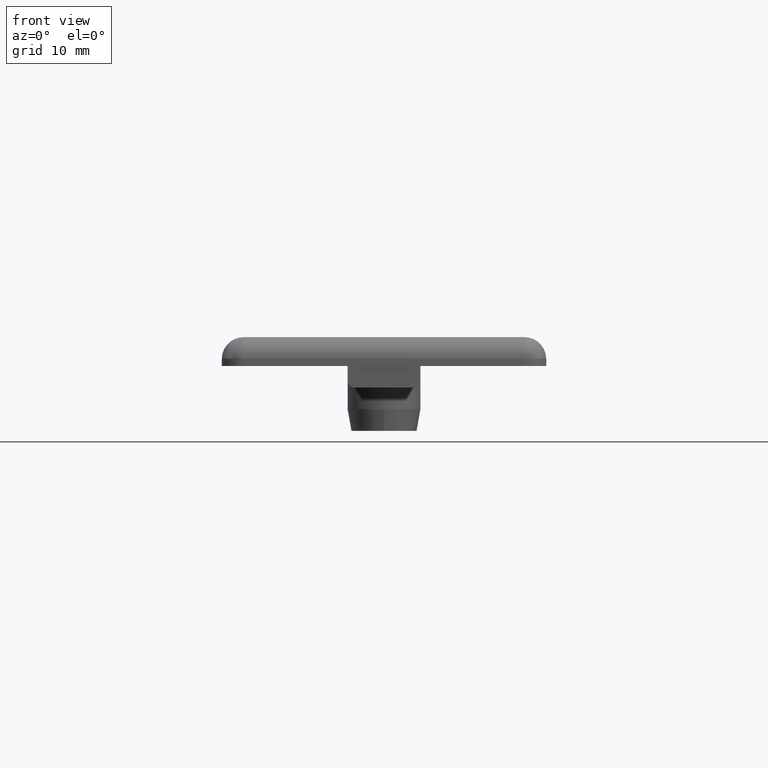
[diagram: clean part render]
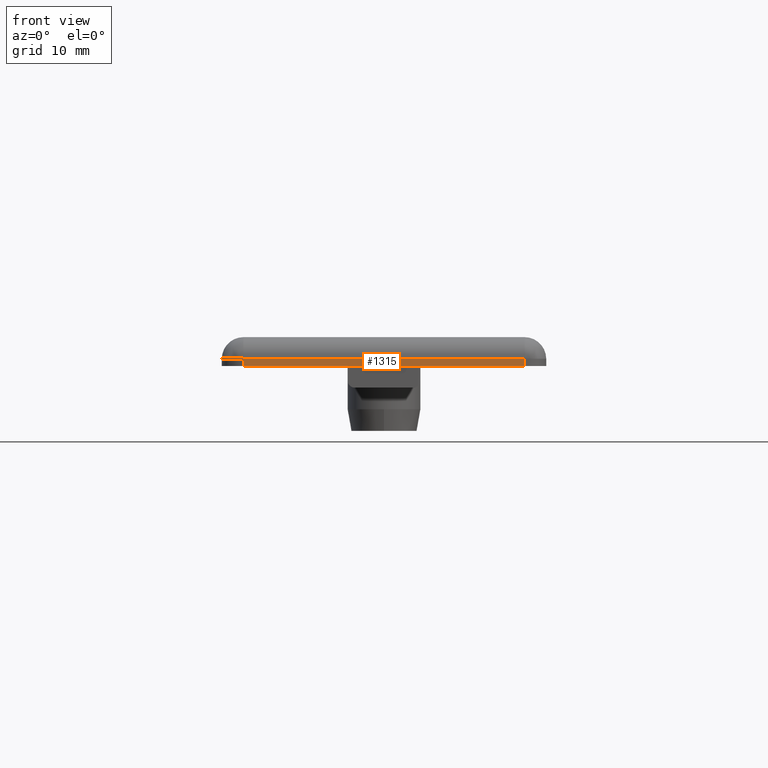
[diagram: same view with one face highlighted and labeled with its STEP entity id]
A machine part, front view. The second image highlights one B-rep face of the part: STEP entity #1315.
In plain terms, the highlighted planar face has unit normal (0, 1, -0).
Its self-contained STEP definition (entity closure, byte-faithful):
#4 = CARTESIAN_POINT ( 'NONE',  ( -19.49999999999999600, -45.00000000000000000, 1.000000000000007800 ) ) ;
#23 = DIRECTION ( 'NONE',  ( 2.220446049250309900E-016, 1.000000000000000000, -1.224646799147350000E-016 ) ) ;
#26 = EDGE_CURVE ( 'NONE', #998, #1662, #1525, .T. ) ;
#28 = FACE_OUTER_BOUND ( 'NONE', #1094, .T. ) ;
#180 = VECTOR ( 'NONE', #1981, 1000.000000000000000 ) ;
#195 = CARTESIAN_POINT ( 'NONE',  ( 19.50000000000000000, -45.00000000000000700, 1.000000000000003100 ) ) ;
#241 = DIRECTION ( 'NONE',  ( -2.719262146893779900E-032, -1.224646799147350000E-016, -1.000000000000000000 ) ) ;
#285 = DIRECTION ( 'NONE',  ( 2.719262146893771200E-032, 1.224646799147350000E-016, 1.000000000000000000 ) ) ;
#308 = EDGE_CURVE ( 'NONE', #800, #507, #502, .T. ) ;
#385 = AXIS2_PLACEMENT_3D ( 'NONE', #1324, #23, #1149 ) ;
#502 = LINE ( 'NONE', #1667, #1214 ) ;
#507 = VERTEX_POINT ( 'NONE', #936 ) ;
#613 = VECTOR ( 'NONE', #1827, 1000.000000000000000 ) ;
#668 = PLANE ( 'NONE',  #385 ) ;
#800 = VERTEX_POINT ( 'NONE', #195 ) ;
#929 = CARTESIAN_POINT ( 'NONE',  ( -19.49999999999999600, -44.99999999999999300, 5.510910596163090300E-015 ) ) ;
#936 = CARTESIAN_POINT ( 'NONE',  ( 19.50000000000000000, -45.00000000000000000, 5.510910596163091100E-015 ) ) ;
#998 = VERTEX_POINT ( 'NONE', #1883 ) ;
#1094 = EDGE_LOOP ( 'NONE', ( #1802, #1758, #1995, #1733 ) ) ;
#1149 = DIRECTION ( 'NONE',  ( -1.000000000000000000, 2.220446049250309900E-016, 0.0000000000000000000 ) ) ;
#1214 = VECTOR ( 'NONE', #241, 1000.000000000000000 ) ;
#1261 = EDGE_CURVE ( 'NONE', #507, #998, #2008, .T. ) ;
#1275 = VECTOR ( 'NONE', #285, 1000.000000000000000 ) ;
#1315 = ADVANCED_FACE ( 'NONE', ( #28 ), #668, .F. ) ;
#1324 = CARTESIAN_POINT ( 'NONE',  ( 22.50000000000000000, -45.00000000000000000, 5.510910596163090300E-015 ) ) ;
#1490 = CARTESIAN_POINT ( 'NONE',  ( 22.50000000000000000, -45.00000000000000000, 5.510910596163090300E-015 ) ) ;
#1525 = LINE ( 'NONE', #929, #1275 ) ;
#1652 = CARTESIAN_POINT ( 'NONE',  ( 22.50000000000000000, -45.00000000000000700, 1.000000000000009800 ) ) ;
#1662 = VERTEX_POINT ( 'NONE', #4 ) ;
#1667 = CARTESIAN_POINT ( 'NONE',  ( 19.50000000000000000, -45.00000000000000700, 5.510910596163085600E-015 ) ) ;
#1733 = ORIENTED_EDGE ( 'NONE', *, *, #308, .F. ) ;
#1743 = EDGE_CURVE ( 'NONE', #1662, #800, #1778, .T. ) ;
#1758 = ORIENTED_EDGE ( 'NONE', *, *, #26, .F. ) ;
#1778 = LINE ( 'NONE', #1652, #613 ) ;
#1802 = ORIENTED_EDGE ( 'NONE', *, *, #1743, .F. ) ;
#1827 = DIRECTION ( 'NONE',  ( 1.000000000000000000, -2.220446049250310100E-016, 0.0000000000000000000 ) ) ;
#1883 = CARTESIAN_POINT ( 'NONE',  ( -19.49999999999999600, -44.99999999999999300, 5.510910596163084000E-015 ) ) ;
#1981 = DIRECTION ( 'NONE',  ( -1.000000000000000000, 2.220446049250309900E-016, 0.0000000000000000000 ) ) ;
#1995 = ORIENTED_EDGE ( 'NONE', *, *, #1261, .F. ) ;
#2008 = LINE ( 'NONE', #1490, #180 ) ;